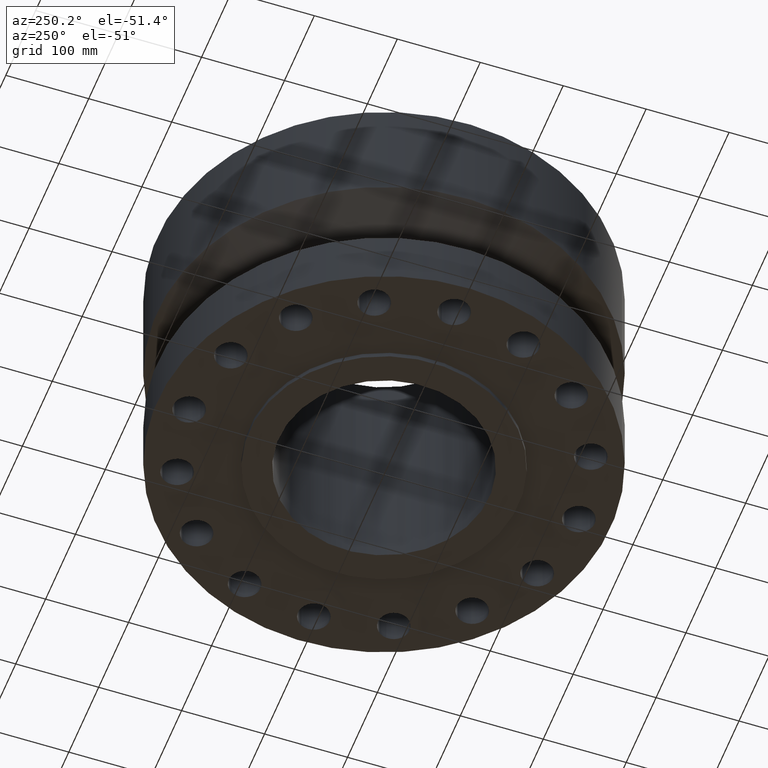
[diagram: clean part render]
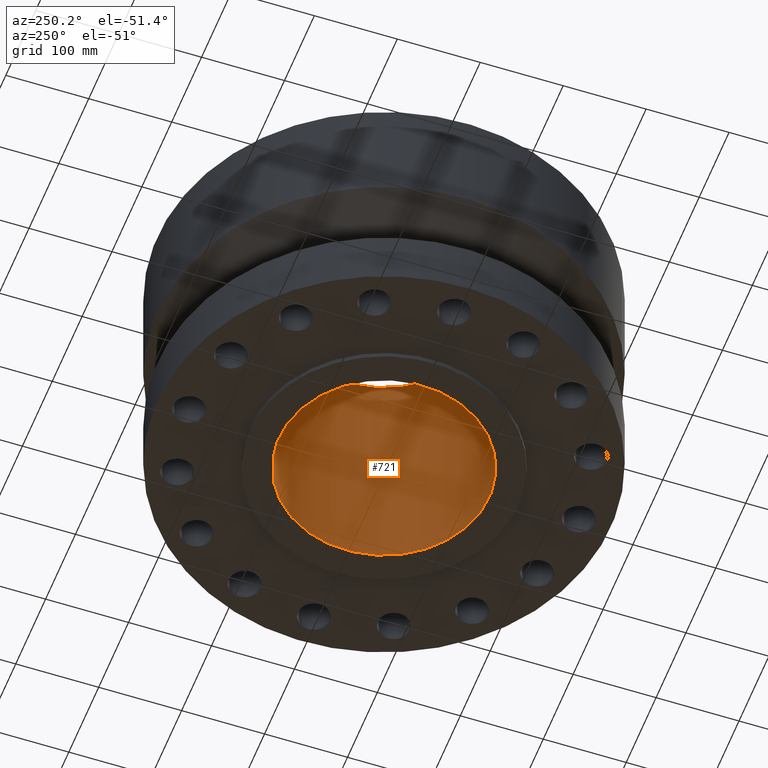
[diagram: same view with one face highlighted and labeled with its STEP entity id]
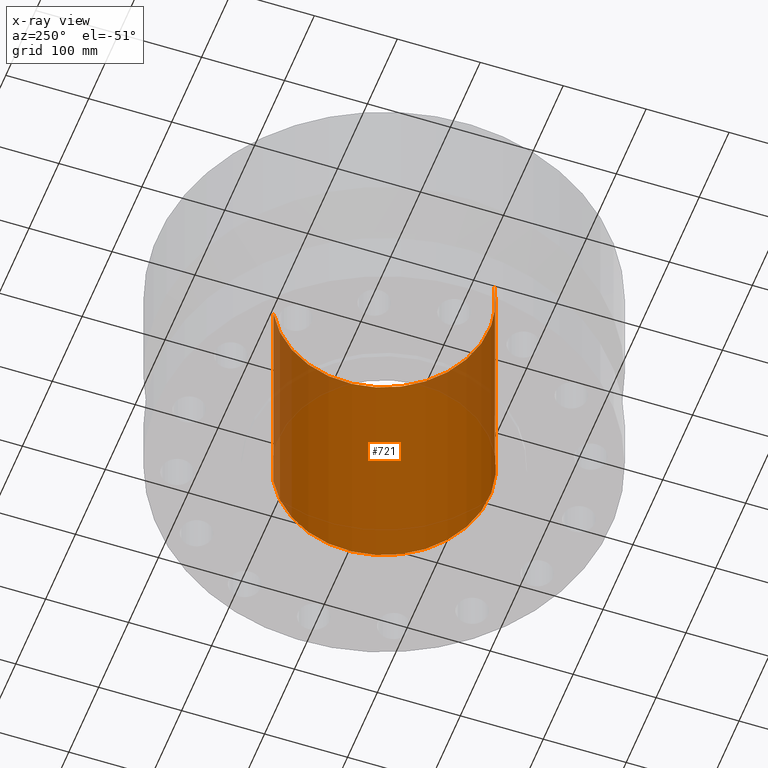
[diagram: x-ray of the same camera — body ghosted, the highlighted face saturated]
A machine part, auxiliary view. The second image highlights one B-rep face of the part: STEP entity #721.
The next image is the same camera in x-ray: the body ghosted, the highlighted face saturated — about 19% of this face is hidden behind the body in this view.
In plain terms, the highlighted cylindrical surface (partial cylindrical patch) has radius 127 mm, axis along (0, 0, -1).
Its self-contained STEP definition (entity closure, byte-faithful):
#683=AXIS2_PLACEMENT_3D('Circle Axis2P3D',#681,#682,$) ;
#694=AXIS2_PLACEMENT_3D('Cylinder Axis2P3D',#691,#692,#693) ;
#705=AXIS2_PLACEMENT_3D('Circle Axis2P3D',#703,#704,$) ;
#676=CARTESIAN_POINT('Vertex',(-2.39712769303,-4.38791280947,11.75)) ;
#678=CARTESIAN_POINT('Vertex',(2.39712769303,4.38791280947,11.75)) ;
#681=CARTESIAN_POINT('Axis2P3D Location',(0.,0.,11.75)) ;
#691=CARTESIAN_POINT('Axis2P3D Location',(0.,0.,5.75000000002)) ;
#696=CARTESIAN_POINT('Line Origine',(2.39712769303,4.38791280947,5.75000000002)) ;
#700=CARTESIAN_POINT('Vertex',(2.39712769303,4.38791280947,-0.250000000001)) ;
#703=CARTESIAN_POINT('Axis2P3D Location',(0.,0.,-0.250000000001)) ;
#707=CARTESIAN_POINT('Vertex',(-2.39712769303,-4.38791280947,-0.250000000001)) ;
#710=CARTESIAN_POINT('Line Origine',(-2.39712769303,-4.38791280947,5.75000000002)) ;
#682=DIRECTION('Axis2P3D Direction',(0.,0.,-0.0393700787402)) ;
#692=DIRECTION('Axis2P3D Direction',(0.,0.,-0.0393700787402)) ;
#693=DIRECTION('Axis2P3D XDirection',(-0.0188750212049,-0.0345504945626,0.)) ;
#697=DIRECTION('Vector Direction',(0.,0.,-0.0393700787402)) ;
#704=DIRECTION('Axis2P3D Direction',(0.,0.,-0.0393700787402)) ;
#711=DIRECTION('Vector Direction',(0.,0.,-0.0393700787402)) ;
#698=VECTOR('Line Direction',#697,0.0393700787402) ;
#712=VECTOR('Line Direction',#711,0.0393700787402) ;
#716=ORIENTED_EDGE('',*,*,#685,.F.) ;
#717=ORIENTED_EDGE('',*,*,#702,.T.) ;
#718=ORIENTED_EDGE('',*,*,#709,.T.) ;
#719=ORIENTED_EDGE('',*,*,#714,.F.) ;
#721=ADVANCED_FACE('PartBody',(#720),#695,.F.) ;
#684=CIRCLE('generated circle',#683,5.00000000002) ;
#706=CIRCLE('generated circle',#705,5.00000000002) ;
#695=CYLINDRICAL_SURFACE('generated cylinder',#694,5.00000000002) ;
#685=EDGE_CURVE('',#679,#677,#684,.T.) ;
#702=EDGE_CURVE('',#679,#701,#699,.T.) ;
#709=EDGE_CURVE('',#701,#708,#706,.T.) ;
#714=EDGE_CURVE('',#677,#708,#713,.T.) ;
#715=EDGE_LOOP('',(#716,#717,#718,#719)) ;
#720=FACE_OUTER_BOUND('',#715,.T.) ;
#699=LINE('Line',#696,#698) ;
#713=LINE('Line',#710,#712) ;
#677=VERTEX_POINT('',#676) ;
#679=VERTEX_POINT('',#678) ;
#701=VERTEX_POINT('',#700) ;
#708=VERTEX_POINT('',#707) ;